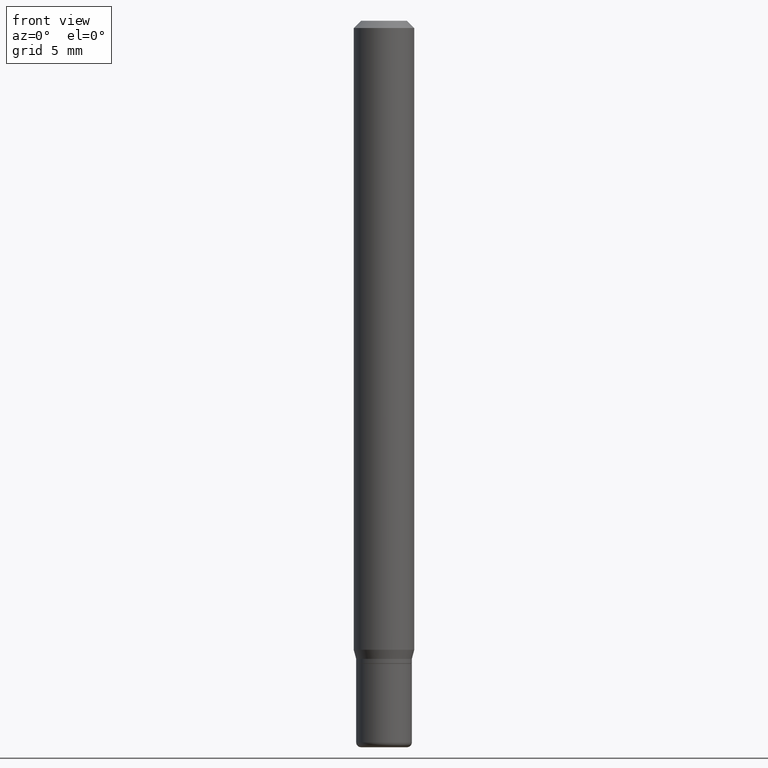
[diagram: clean part render]
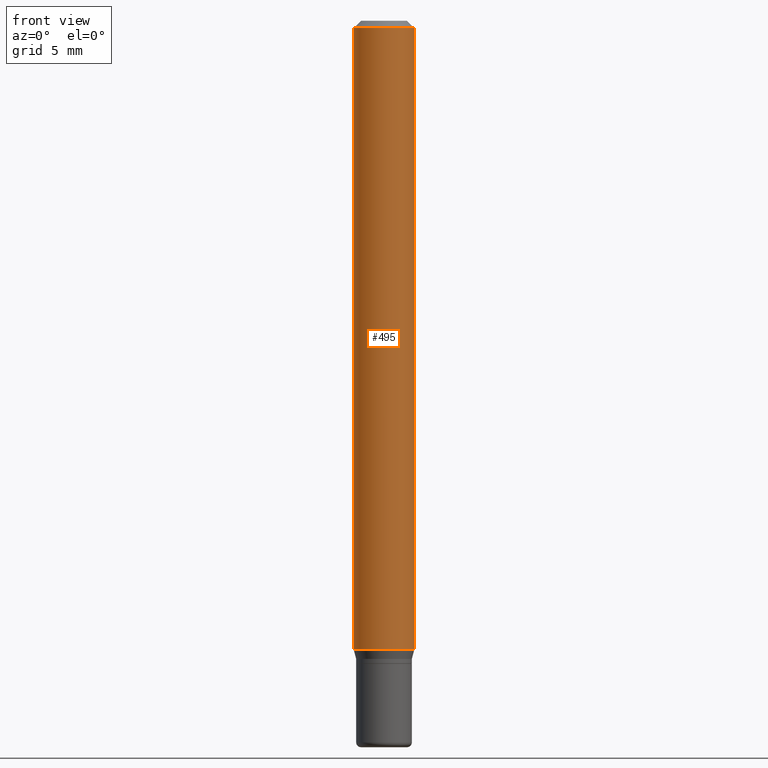
[diagram: same view with one face highlighted and labeled with its STEP entity id]
A machine part, front view. The second image highlights one B-rep face of the part: STEP entity #495.
In plain terms, the highlighted cylindrical surface (edge-blend (fillet) strip) has radius 1.5875 mm, axis along (-0, 0, 1).
Its self-contained STEP definition (entity closure, byte-faithful):
#22 = VECTOR ( 'NONE', #114, 39.37007874015748143 ) ;
#24 = EDGE_CURVE ( 'NONE', #37, #233, #169, .T. ) ;
#30 = AXIS2_PLACEMENT_3D ( 'NONE', #92, #212, #56 ) ;
#37 = VERTEX_POINT ( 'NONE', #312 ) ;
#56 = DIRECTION ( 'NONE',  ( 1.000000000000000000, -6.982962677686266711E-15, 0.000000000000000000 ) ) ;
#72 = DIRECTION ( 'NONE',  ( -2.445468806185136877E-29, 3.491481338843145188E-15, 1.000000000000000000 ) ) ;
#83 = EDGE_CURVE ( 'NONE', #128, #246, #508, .T. ) ;
#92 = CARTESIAN_POINT ( 'NONE',  ( 3.668203209277632395E-31, -5.237222008264614861E-17, -0.01499999999999970281 ) ) ;
#98 = AXIS2_PLACEMENT_3D ( 'NONE', #155, #441, #395 ) ;
#114 = DIRECTION ( 'NONE',  ( -2.445468806185136877E-29, 3.491481338843145188E-15, 1.000000000000000000 ) ) ;
#124 = ORIENTED_EDGE ( 'NONE', *, *, #24, .T. ) ;
#128 = VERTEX_POINT ( 'NONE', #470 ) ;
#141 = VECTOR ( 'NONE', #72, 39.37007874015748143 ) ;
#155 = CARTESIAN_POINT ( 'NONE',  ( 0.000000000000000000, 0.000000000000000000, 0.000000000000000000 ) ) ;
#156 = CARTESIAN_POINT ( 'NONE',  ( 0.06250000000000000000, -4.971309902530030685E-15, -1.298839745962155678 ) ) ;
#169 = CIRCLE ( 'NONE', #264, 0.06250000000000000000 ) ;
#192 = ORIENTED_EDGE ( 'NONE', *, *, #83, .F. ) ;
#212 = DIRECTION ( 'NONE',  ( -2.445468806185136597E-29, 3.491481338843145583E-15, 1.000000000000000000 ) ) ;
#233 = VERTEX_POINT ( 'NONE', #156 ) ;
#241 = FACE_OUTER_BOUND ( 'NONE', #410, .T. ) ;
#243 = DIRECTION ( 'NONE',  ( -2.445468806185136597E-29, 3.491481338843145583E-15, 1.000000000000000000 ) ) ;
#246 = VERTEX_POINT ( 'NONE', #344 ) ;
#260 = EDGE_CURVE ( 'NONE', #233, #246, #427, .T. ) ;
#264 = AXIS2_PLACEMENT_3D ( 'NONE', #347, #243, #509 ) ;
#270 = ORIENTED_EDGE ( 'NONE', *, *, #277, .F. ) ;
#277 = EDGE_CURVE ( 'NONE', #37, #128, #314, .T. ) ;
#312 = CARTESIAN_POINT ( 'NONE',  ( -0.06250000000000000000, -4.090785525324575611E-15, -1.298839745962155678 ) ) ;
#314 = LINE ( 'NONE', #472, #22 ) ;
#344 = CARTESIAN_POINT ( 'NONE',  ( 0.06250000000000000000, -4.888073874380378612E-16, -0.01499999999999970281 ) ) ;
#347 = CARTESIAN_POINT ( 'NONE',  ( 3.176272082983878973E-29, -4.534874735174638227E-15, -1.298839745962155678 ) ) ;
#395 = DIRECTION ( 'NONE',  ( 1.000000000000000000, -6.982962677686266711E-15, 4.876176775795935793E-29 ) ) ;
#410 = EDGE_LOOP ( 'NONE', ( #270, #124, #421, #192 ) ) ;
#421 = ORIENTED_EDGE ( 'NONE', *, *, #260, .T. ) ;
#427 = LINE ( 'NONE', #469, #141 ) ;
#441 = DIRECTION ( 'NONE',  ( -2.445468806185136597E-29, 3.491481338843145583E-15, 1.000000000000000000 ) ) ;
#463 = CYLINDRICAL_SURFACE ( 'NONE', #98, 0.06250000000000000000 ) ;
#469 = CARTESIAN_POINT ( 'NONE',  ( 0.06250000000000000000, -4.364351673553916694E-16, 3.047610484872459871E-30 ) ) ;
#470 = CARTESIAN_POINT ( 'NONE',  ( -0.06250000000000000000, -1.849534267778579445E-15, -0.01499999999999970281 ) ) ;
#472 = CARTESIAN_POINT ( 'NONE',  ( -0.06250000000000000000, 4.440892098500626162E-16, -3.074334431409316114E-30 ) ) ;
#495 = ADVANCED_FACE ( 'NONE', ( #241 ), #463, .T. ) ;
#508 = CIRCLE ( 'NONE', #30, 0.06250000000000000000 ) ;
#509 = DIRECTION ( 'NONE',  ( 1.000000000000000000, -6.982962677686262766E-15, 0.000000000000000000 ) ) ;